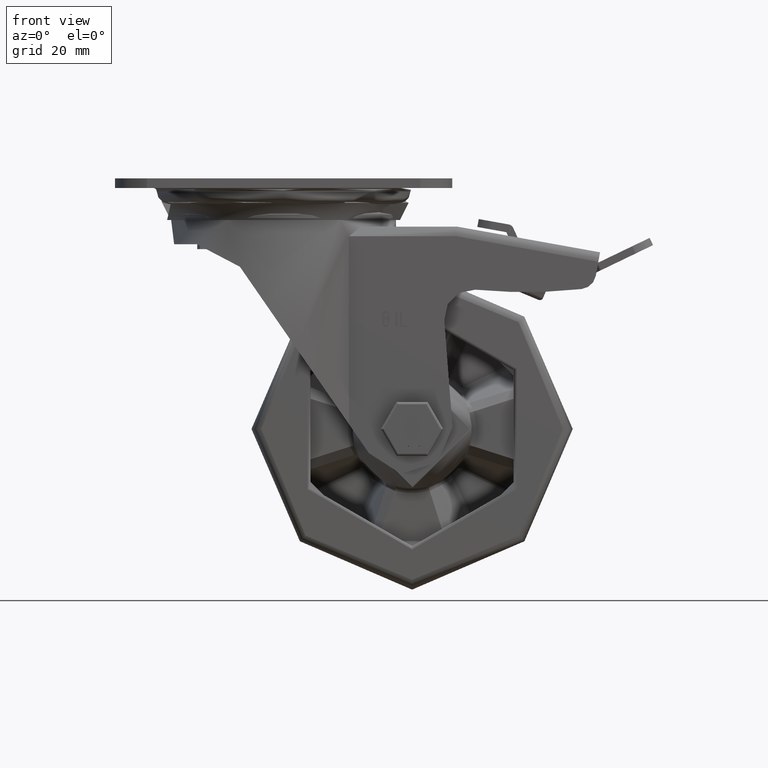
[diagram: clean part render]
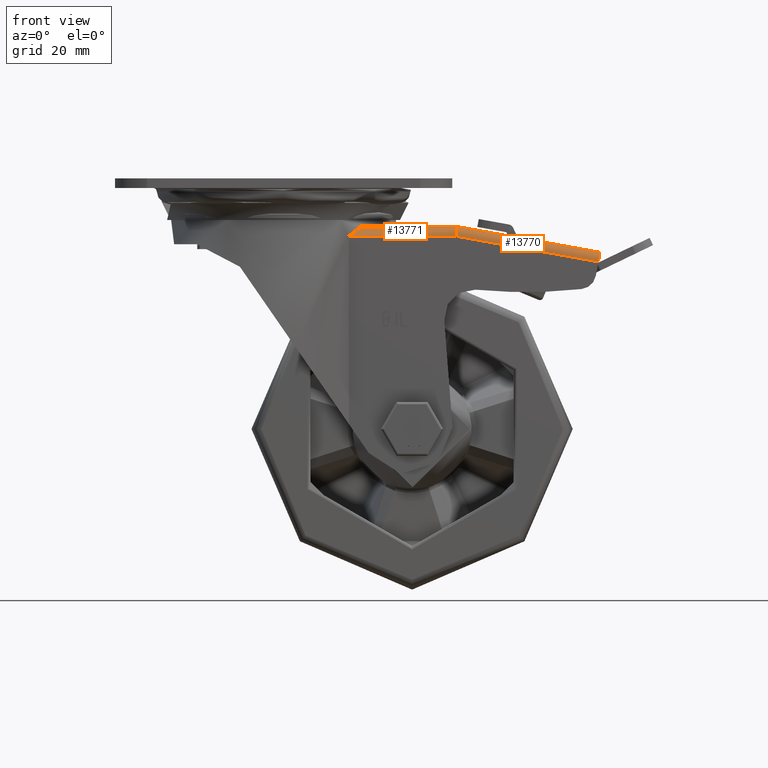
[diagram: same view with one multi-face feature highlighted, each face labeled with its STEP entity id]
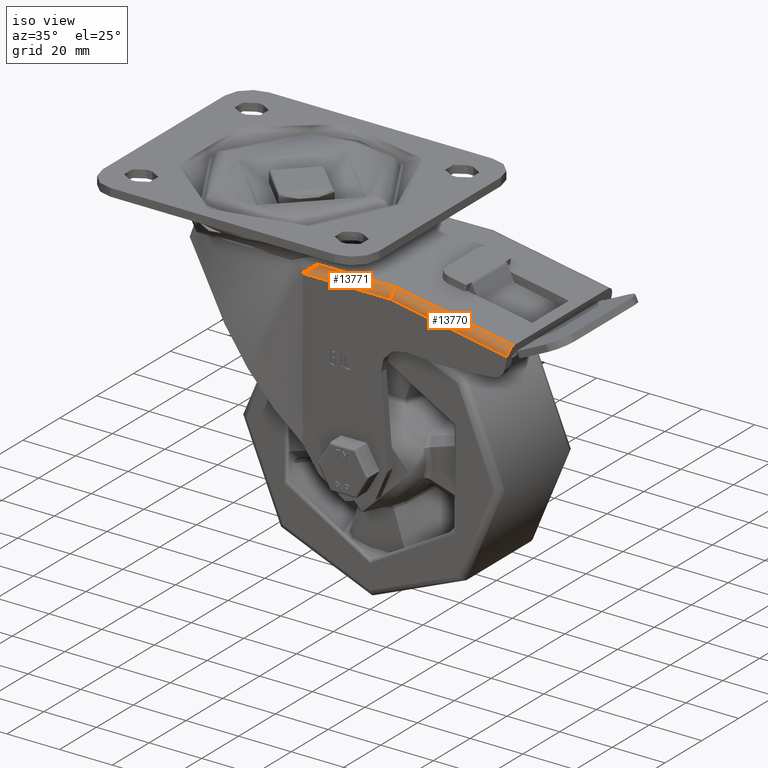
[diagram: same view with one multi-face feature highlighted, each face labeled with its STEP entity id]
A machine part, front view. The highlighted faces form ONE feature: a constant-radius fillet chain: 2 tangent blend faces with common blend radius 3 mm. The faces share edges in the B-rep.
A second angle (iso view) of the same feature is appended — it is thin or edge-on in the first view.
Their STEP definitions:
[1] entity #13770 (Cylinder):
#1391=ELLIPSE('',#15043,3.00000587014075,3.);
#1392=ELLIPSE('',#15044,3.01190408373312,3.);
#1669=LINE('',#21443,#2612);
#1670=LINE('',#21446,#2613);
#2612=VECTOR('',#17192,999.999999999999);
#2613=VECTOR('',#17195,999.999999999999);
#3344=CYLINDRICAL_SURFACE('',#15042,3.);
#3678=FACE_OUTER_BOUND('',#4541,.T.);
#4541=EDGE_LOOP('',(#10244,#10245,#10246,#10247));
#6243=VERTEX_POINT('',#21439);
#6244=VERTEX_POINT('',#21440);
#6245=VERTEX_POINT('',#21442);
#6246=VERTEX_POINT('',#21444);
#7702=EDGE_CURVE('',#6243,#6244,#1391,.T.);
#7703=EDGE_CURVE('',#6244,#6245,#1669,.T.);
#7704=EDGE_CURVE('',#6246,#6245,#1392,.T.);
#7705=EDGE_CURVE('',#6246,#6243,#1670,.T.);
#10244=ORIENTED_EDGE('',*,*,#7702,.T.);
#10245=ORIENTED_EDGE('',*,*,#7703,.T.);
#10246=ORIENTED_EDGE('',*,*,#7704,.F.);
#10247=ORIENTED_EDGE('',*,*,#7705,.T.);
#13770=ADVANCED_FACE('',(#3678),#3344,.T.);
#15042=AXIS2_PLACEMENT_3D('',#21438,#17188,#17189);
#15043=AXIS2_PLACEMENT_3D('',#21441,#17190,#17191);
#15044=AXIS2_PLACEMENT_3D('',#21445,#17193,#17194);
#17188=DIRECTION('center_axis',(-0.984221862475645,-2.35286929792861E-17,
0.176938761793374));
#17189=DIRECTION('ref_axis',(0.125114598318846,-0.707106781186548,0.695949953148582));
#17190=DIRECTION('center_axis',(-0.983869910099908,0.,0.178885438199981));
#17191=DIRECTION('ref_axis',(0.178885438199981,-5.05960023807718E-16,0.983869910099908));
#17192=DIRECTION('',(-0.984221862475645,0.,0.176938761793374));
#17193=DIRECTION('center_axis',(-0.996047655103822,-4.607646001334E-15,
0.0888204298693596));
#17194=DIRECTION('ref_axis',(0.0888204298693596,-5.16709387910812E-14,0.996047655103822));
#17195=DIRECTION('',(0.984221862475645,0.,-0.176938761793374));
#21438=CARTESIAN_POINT('Origin',(37.1333790185211,-25.5,-15.0158917094766));
#21439=CARTESIAN_POINT('',(97.9633426353174,-28.5,-25.9516155057545));
#21440=CARTESIAN_POINT('',(98.5,-25.5,-23.));
#21441=CARTESIAN_POINT('Origin',(97.9633426353174,-25.5,-25.9516155057545));
#21442=CARTESIAN_POINT('',(54.,-25.5,-15.));
#21443=CARTESIAN_POINT('',(37.6641953039012,-25.5,-12.0632261220496));
#21444=CARTESIAN_POINT('',(53.7324813845576,-28.5,-18.));
#21445=CARTESIAN_POINT('Origin',(53.7324813845576,-25.5,-18.));
#21446=CARTESIAN_POINT('',(37.1333790185211,-28.5,-15.0158917094766));
[2] entity #13771 (Cylinder):
#552=B_SPLINE_CURVE_WITH_KNOTS('',3,(#21426,#21427,#21428,#21429,#21430,
#21431,#21432,#21433,#21434,#21435,#21436,#21437),.UNSPECIFIED.,.F.,.F.,
(4,2,2,2,2,4),(1.1306181750804,1.187761652528,1.2449051299756,1.35919208487081,
1.53873481692993,1.71827754898904),.UNSPECIFIED.);
#1392=ELLIPSE('',#15044,3.01190408373312,3.);
#1671=LINE('',#21448,#2614);
#1672=LINE('',#21449,#2615);
#2614=VECTOR('',#17198,1000.);
#2615=VECTOR('',#17199,1000.);
#3345=CYLINDRICAL_SURFACE('',#15045,3.);
#3679=FACE_OUTER_BOUND('',#4542,.T.);
#4542=EDGE_LOOP('',(#10248,#10249,#10250,#10251));
#6232=VERTEX_POINT('',#21367);
#6242=VERTEX_POINT('',#21424);
#6245=VERTEX_POINT('',#21442);
#6246=VERTEX_POINT('',#21444);
#7701=EDGE_CURVE('',#6232,#6242,#552,.F.);
#7704=EDGE_CURVE('',#6246,#6245,#1392,.T.);
#7706=EDGE_CURVE('',#6245,#6232,#1671,.T.);
#7707=EDGE_CURVE('',#6242,#6246,#1672,.T.);
#10248=ORIENTED_EDGE('',*,*,#7704,.T.);
#10249=ORIENTED_EDGE('',*,*,#7706,.T.);
#10250=ORIENTED_EDGE('',*,*,#7701,.T.);
#10251=ORIENTED_EDGE('',*,*,#7707,.T.);
#13771=ADVANCED_FACE('',(#3679),#3345,.T.);
#15044=AXIS2_PLACEMENT_3D('',#21445,#17193,#17194);
#15045=AXIS2_PLACEMENT_3D('',#21447,#17196,#17197);
#17193=DIRECTION('center_axis',(-0.996047655103822,-4.607646001334E-15,
0.0888204298693596));
#17194=DIRECTION('ref_axis',(0.0888204298693596,-5.16709387910812E-14,0.996047655103822));
#17196=DIRECTION('center_axis',(-1.,8.35907093918071E-32,-6.19544098563146E-16));
#17197=DIRECTION('ref_axis',(-4.38083833338107E-16,-0.707106781186547,0.707106781186547));
#17198=DIRECTION('',(-1.,0.,-6.19544098563145E-16));
#17199=DIRECTION('',(1.,0.,6.19544098563145E-16));
#21367=CARTESIAN_POINT('',(23.9739441894737,-25.5,-15.));
#21424=CARTESIAN_POINT('',(20.31624965391,-28.5,-18.));
#21426=CARTESIAN_POINT('Ctrl Pts',(20.3162496539101,-28.5,-18.));
#21427=CARTESIAN_POINT('Ctrl Pts',(20.3162496539101,-28.5,-17.8095217418413));
#21428=CARTESIAN_POINT('Ctrl Pts',(20.3420763602162,-28.4816352066664,-17.6196979023606));
#21429=CARTESIAN_POINT('Ctrl Pts',(20.4398063738094,-28.4115809150136,-17.2533576699184));
#21430=CARTESIAN_POINT('Ctrl Pts',(20.5116176396968,-28.3599277039255,-17.0768097909568));
#21431=CARTESIAN_POINT('Ctrl Pts',(20.7768336675226,-28.166842479135,-16.5809097701669));
#21432=CARTESIAN_POINT('Ctrl Pts',(21.021286341695,-27.9857234814576,-16.2952259379082));
#21433=CARTESIAN_POINT('Ctrl Pts',(21.651318746626,-27.5037332786573,-15.7207416269494));
#21434=CARTESIAN_POINT('Ctrl Pts',(22.1116551615865,-27.1377179690879,-15.4486937286096));
#21435=CARTESIAN_POINT('Ctrl Pts',(23.0548340250273,-26.3411400456033,-15.0873092963729));
#21436=CARTESIAN_POINT('Ctrl Pts',(23.5379118401873,-25.9099378512391,-15.));
#21437=CARTESIAN_POINT('Ctrl Pts',(23.9739441894737,-25.5,-15.));
#21442=CARTESIAN_POINT('',(54.,-25.5,-15.));
#21444=CARTESIAN_POINT('',(53.7324813845576,-28.5,-18.));
#21445=CARTESIAN_POINT('Origin',(53.7324813845576,-25.5,-18.));
#21447=CARTESIAN_POINT('Origin',(21.,-25.5,-18.));
#21448=CARTESIAN_POINT('',(21.,-25.5,-15.));
#21449=CARTESIAN_POINT('',(21.,-28.5,-18.));